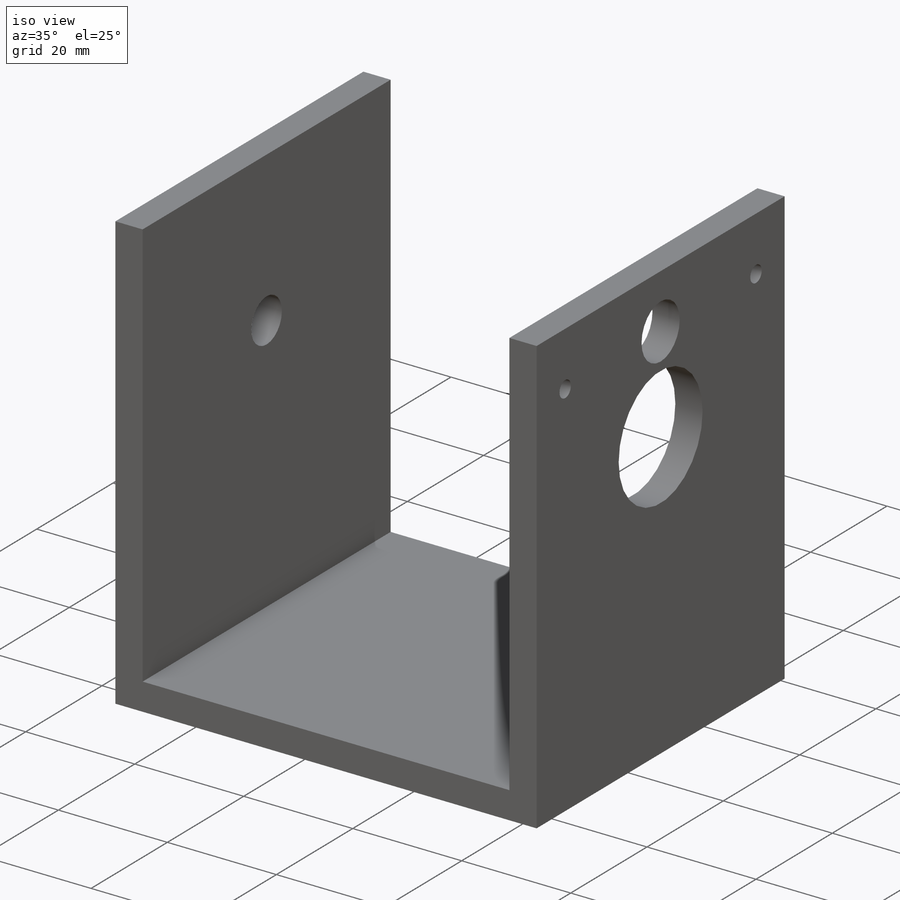
[diagram: iso view]
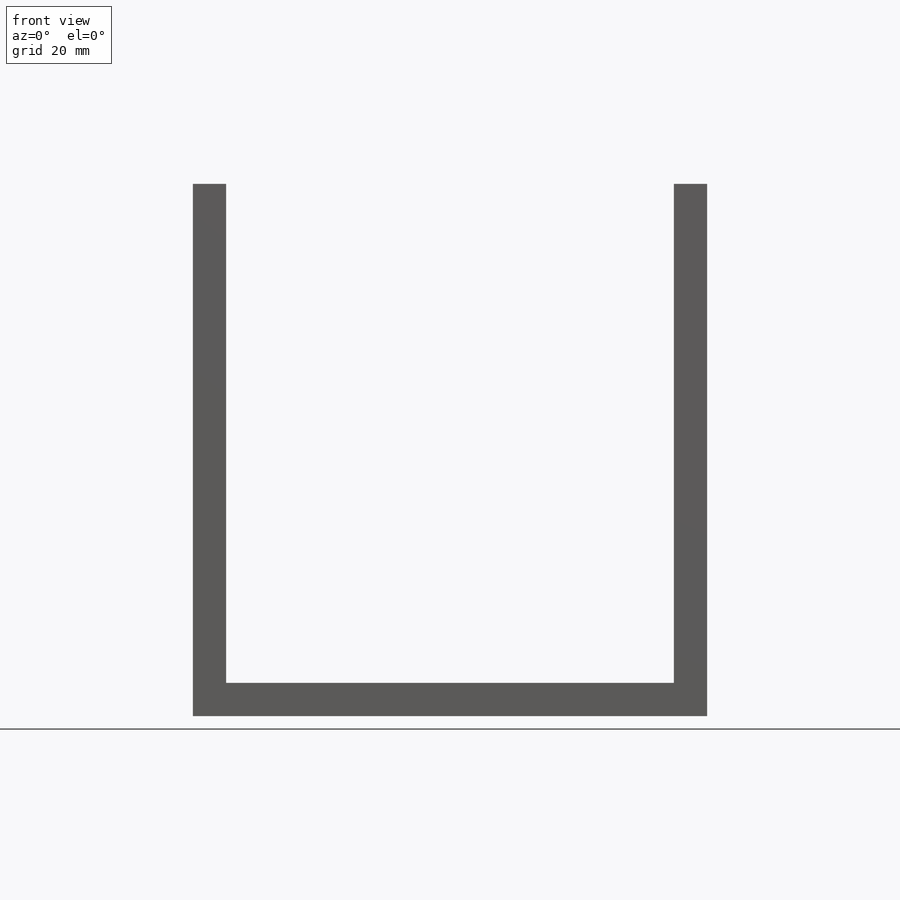
[diagram: front view]
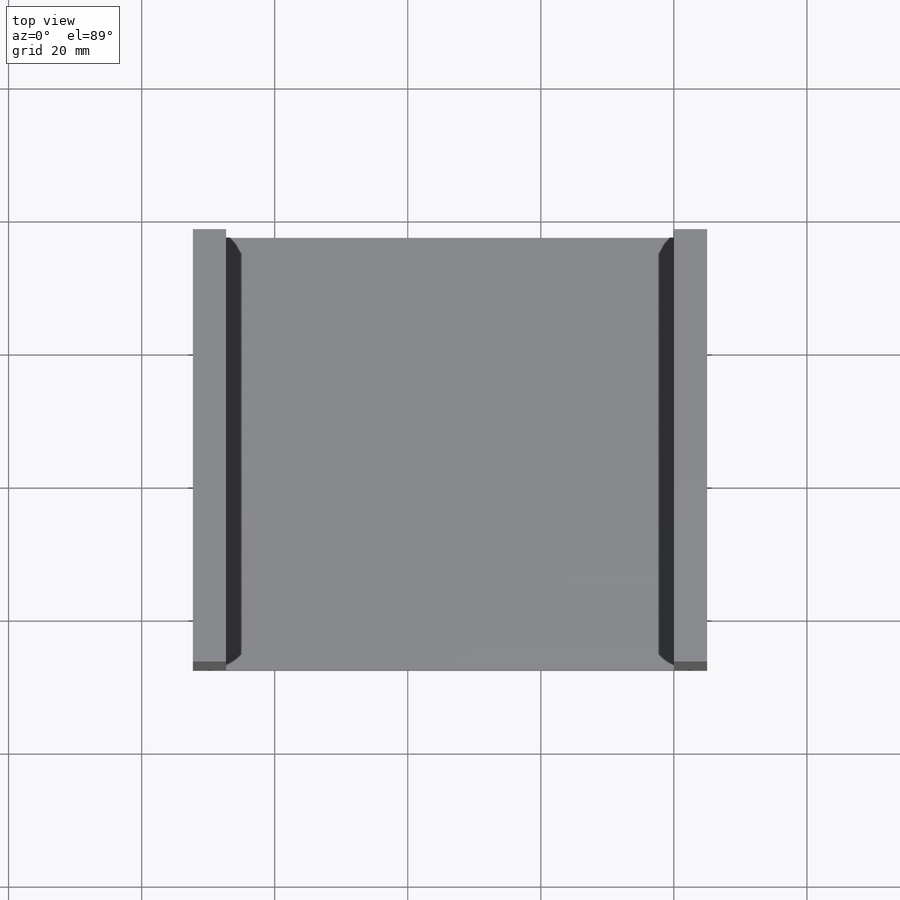
[diagram: top view]
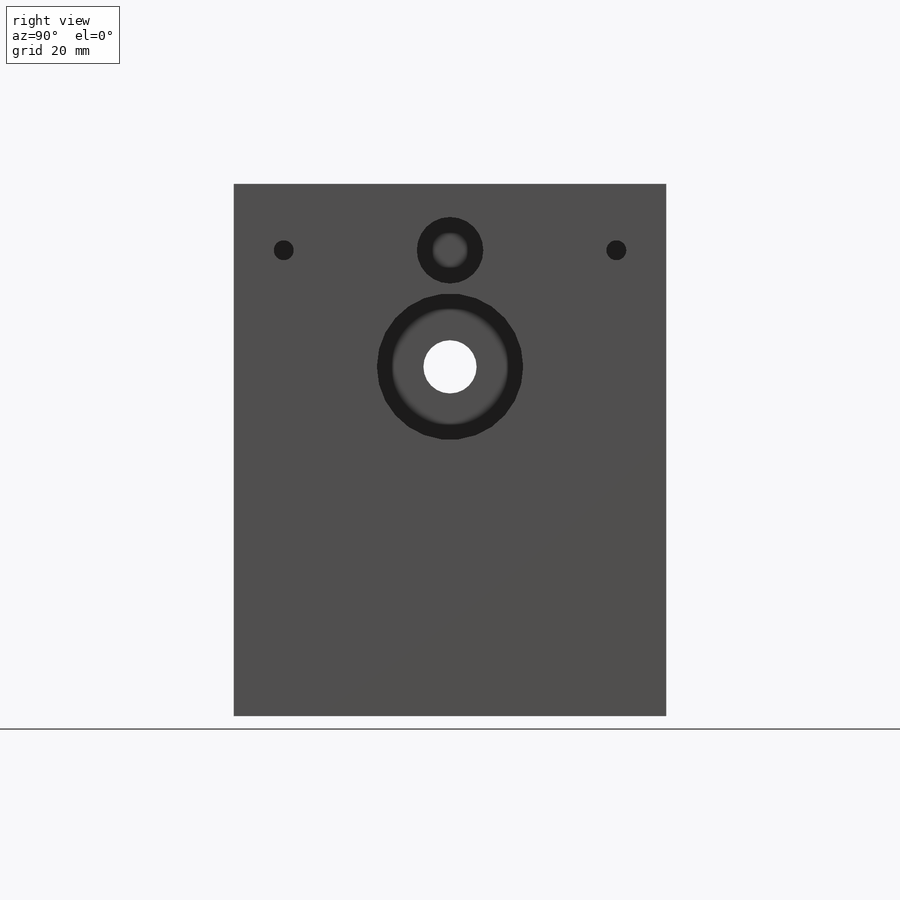
[diagram: right view]
SOLIDWORKS PART (.sldprt)
format: sldprt  version: not decoded by parser v0  size: 199,168 bytes
history: native  units: mm
features: sketch x4, extrude x4, plane x3, material x1 (+10 scaffold rows collapsed)
feature tree (22):
  scaffold x10  (default folders/planes/origin — collapsed)
  material  "Malzeme <belirli değil>"
  plane  "Ön Düzlem"
  plane  "Üst Düzlem"
  plane  "Sağ Düzlem"
  sketch  "Sketch1"  dims[c1.D1=22.0mm c1.D2=10.0mm c2.D1=22.0mm c2.D2=~3.84264mm c2.D3=10.0mm c2.D4=3.0mm c2.D5=3.0mm c3.D1=55.0mm c3.D2=55.0mm c3.D3=~8.949991mm c4.D3=45.0deg c4.D4=~8.157256mm c5.D4=45.0deg c5.D5=10.0mm c5.D6=10.0mm c6.D5=17.5mm c6.D6=50.0mm c6.D7=25.0mm c6.D8=65.0mm c6.D2=17.5mm c7.D6=50.0mm c7.D7=25.0mm]
  extrude  "Boss-Extrude1"  Depth=5mm
  sketch  "Sketch2"
  extrude  "Boss-Extrude2"  Depth=25mm
  sketch  "Sketch3"  dims[D1=72.3mm D2=65.0mm]
  extrude  "Boss-Extrude3"  Depth=5mm
  sketch  "Sketch4"  dims[c1.D2=8.0mm c1.D1=75.0mm c2.D2=55.0mm c2.D1=75.0mm c3.D2=0.0mm c3.D3=27.5mm]
  extrude  "Boss-Extrude4"  Depth=5mm
decode coverage: 7 of 8 modeling features carry decoded parameters
note: ~ marks probable driven/reference dimensions
note: suppression state not decoded; provenance and decode notes live in map.json
